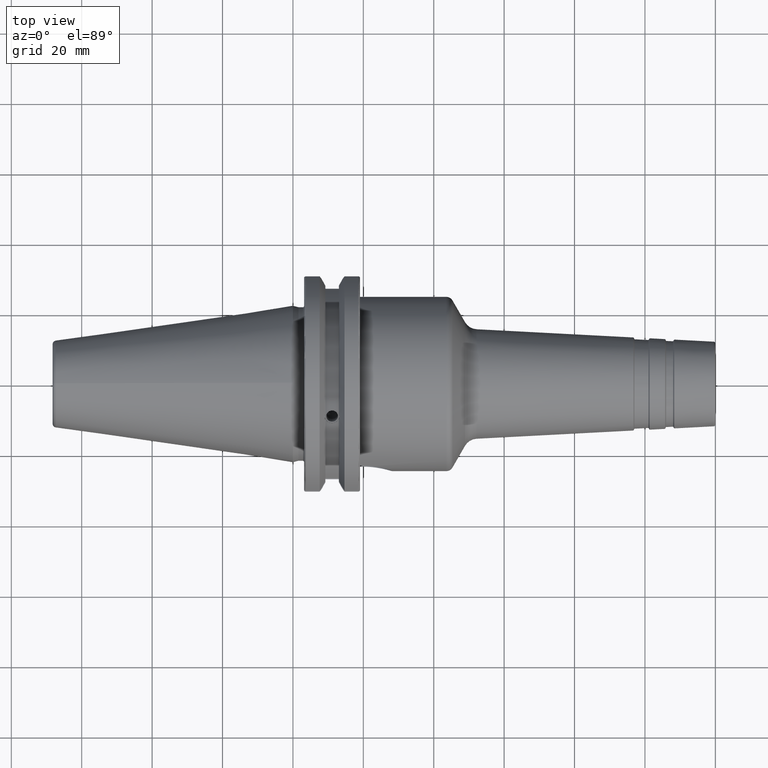
[diagram: clean part render]
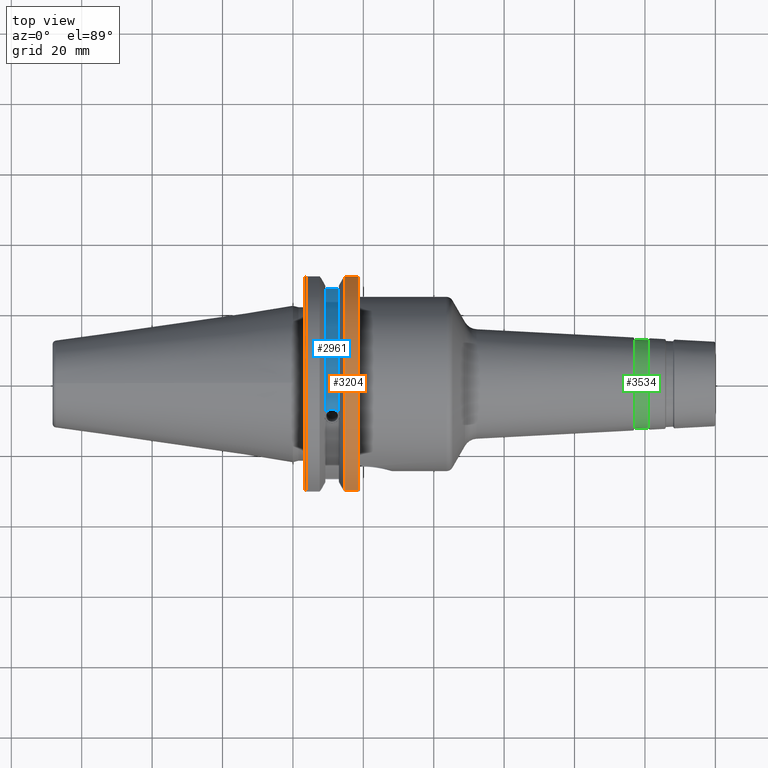
[diagram: same view with three faces highlighted in distinct colors, each labeled with its STEP entity id]
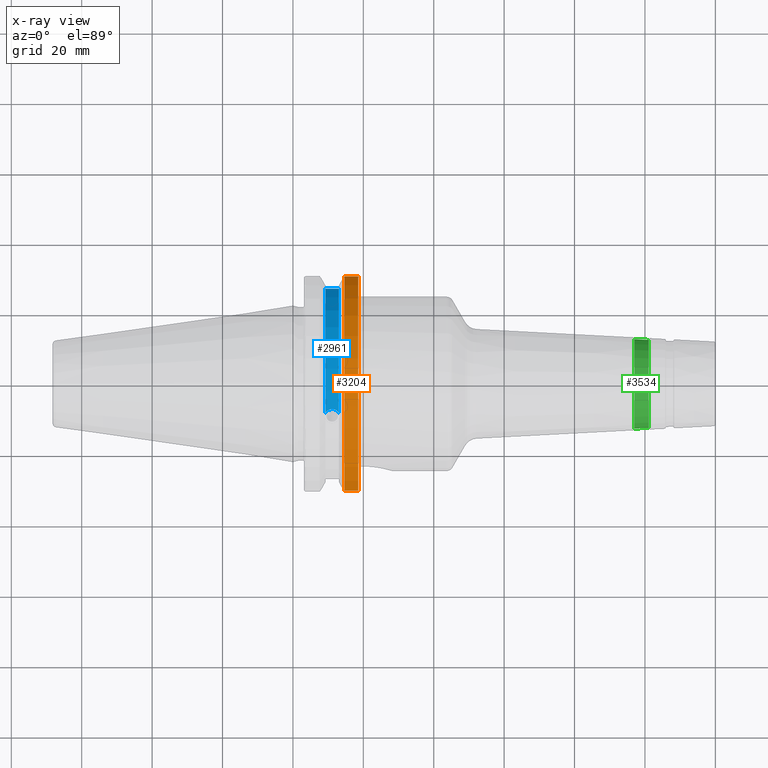
[diagram: x-ray of the same camera — body ghosted, the three highlighted faces saturated]
A machine part, top view with three faces highlighted in distinct colors.
The next image is the same camera in x-ray (body ghosted, the three faces saturated) — at least one of them is partly hidden behind the body in this view.
Their STEP definitions:

[orange] entity #3204 — the highlighted cylindrical surface (partial cylindrical patch) has radius 31.75 mm, axis along (1, 0, 0).
#740=DIRECTION('',(1.E0,0.E0,0.E0));
#741=VECTOR('',#740,3.892490865E0);
#742=CARTESIAN_POINT('',(1.465750913500E1,-3.042082819764E1,9.090418679549E0));
#743=LINE('',#742,#741);
#744=DIRECTION('',(-1.E0,0.E0,0.E0));
#745=VECTOR('',#744,3.892490865E0);
#746=CARTESIAN_POINT('',(1.855E1,3.042082819764E1,9.090418679549E0));
#747=LINE('',#746,#745);
#1427=CARTESIAN_POINT('',(1.465750913500E1,3.042082819764E1,9.090418679549E0));
#1433=CARTESIAN_POINT('',(1.465750913500E1,0.E0,0.E0));
#1434=DIRECTION('',(1.E0,0.E0,0.E0));
#1435=DIRECTION('',(0.E0,9.581363211856E-1,2.863123993559E-1));
#1436=AXIS2_PLACEMENT_3D('',#1433,#1434,#1435);
#1442=CARTESIAN_POINT('',(1.465750913500E1,-3.042082819764E1,9.090418679549E0));
#1642=CARTESIAN_POINT('',(1.855E1,0.E0,0.E0));
#1643=DIRECTION('',(-1.E0,0.E0,0.E0));
#1644=DIRECTION('',(0.E0,-9.581363211856E-1,2.863123993559E-1));
#1645=AXIS2_PLACEMENT_3D('',#1642,#1643,#1644);
#2051=VERTEX_POINT('',#1427);
#2062=VERTEX_POINT('',#1442);
#2119=CARTESIAN_POINT('',(1.855E1,3.042082819764E1,9.090418679549E0));
#2120=VERTEX_POINT('',#2119);
#2123=CARTESIAN_POINT('',(1.855E1,-3.042082819764E1,9.090418679549E0));
#2124=VERTEX_POINT('',#2123);
#3189=CARTESIAN_POINT('',(0.E0,0.E0,0.E0));
#3190=DIRECTION('',(1.E0,0.E0,0.E0));
#3191=DIRECTION('',(0.E0,0.E0,1.E0));
#3192=AXIS2_PLACEMENT_3D('',#3189,#3190,#3191);
#3193=CYLINDRICAL_SURFACE('',#3192,3.175E1);
#3195=ORIENTED_EDGE('',*,*,#3194,.F.);
#3197=ORIENTED_EDGE('',*,*,#3196,.F.);
#3199=ORIENTED_EDGE('',*,*,#3198,.F.);
#3201=ORIENTED_EDGE('',*,*,#3200,.F.);
#3202=EDGE_LOOP('',(#3195,#3197,#3199,#3201));
#3203=FACE_OUTER_BOUND('',#3202,.F.);
#3204=ADVANCED_FACE('',(#3203),#3193,.T.);
#1437=CIRCLE('',#1436,3.175E1);
#1646=CIRCLE('',#1645,3.175E1);
#3194=EDGE_CURVE('',#2124,#2120,#1646,.T.);
#3196=EDGE_CURVE('',#2062,#2124,#743,.T.);
#3198=EDGE_CURVE('',#2051,#2062,#1437,.T.);
#3200=EDGE_CURVE('',#2120,#2051,#747,.T.);

[blue] entity #2961 — the highlighted cylindrical surface (partial cylindrical patch) has radius 28.15 mm, axis along (1, 0, 0).
#501=CARTESIAN_POINT('',(9.2164E0,-8.819209443830E0,2.673282710051E1));
#502=CARTESIAN_POINT('',(9.277326922678E0,-8.689498949537E0,2.677561883413E1));
#503=CARTESIAN_POINT('',(9.425645848928E0,-8.445826615877E0,2.685394006863E1));
#504=CARTESIAN_POINT('',(9.731649204961E0,-8.122965336670E0,2.695313321566E1));
#505=CARTESIAN_POINT('',(1.011486024390E1,-7.861789599072E0,2.703022149910E1));
#506=CARTESIAN_POINT('',(1.058187730189E1,-7.677666024246E0,2.708286890270E1));
#507=CARTESIAN_POINT('',(1.094149101795E1,-7.627684587685E0,2.709688040773E1));
#508=CARTESIAN_POINT('',(1.11341E1,-7.627684587685E0,2.709688040773E1));
#510=CARTESIAN_POINT('',(9.2164E0,0.E0,0.E0));
#511=DIRECTION('',(-1.E0,0.E0,0.E0));
#512=DIRECTION('',(0.E0,-3.132934083066E-1,9.496563801248E-1));
#513=AXIS2_PLACEMENT_3D('',#510,#511,#512);
#515=DIRECTION('',(1.E0,0.E0,0.E0));
#516=VECTOR('',#515,3.83E0);
#517=CARTESIAN_POINT('',(9.2164E0,2.693225575402E1,8.19E0));
#518=LINE('',#517,#516);
#519=CARTESIAN_POINT('',(1.30464E1,0.E0,0.E0));
#520=DIRECTION('',(1.E0,0.E0,0.E0));
#521=DIRECTION('',(0.E0,9.567408793613E-1,2.909413854352E-1));
#522=AXIS2_PLACEMENT_3D('',#519,#520,#521);
#524=CARTESIAN_POINT('',(1.11341E1,-7.627684587685E0,2.709688040773E1));
#525=CARTESIAN_POINT('',(1.131266053571E1,-7.627684587685E0,2.709688040773E1));
#526=CARTESIAN_POINT('',(1.165534260523E1,-7.669766701942E0,2.708509079185E1));
#527=CARTESIAN_POINT('',(1.214633510704E1,-7.855182305992E0,2.703217674506E1));
#528=CARTESIAN_POINT('',(1.255355905525E1,-8.135364807552E0,2.694947821227E1));
#529=CARTESIAN_POINT('',(1.285859687358E1,-8.468591945938E0,2.684674534748E1));
#530=CARTESIAN_POINT('',(1.299198625224E1,-8.693870002458E0,2.677412025015E1));
#531=CARTESIAN_POINT('',(1.30464E1,-8.807808331916E0,2.673658565315E1));
#2018=CARTESIAN_POINT('',(9.2164E0,2.693225575402E1,8.19E0));
#2020=VERTEX_POINT('',#2018);
#2025=CARTESIAN_POINT('',(1.30464E1,2.693225575402E1,8.19E0));
#2026=VERTEX_POINT('',#2025);
#2263=CARTESIAN_POINT('',(1.11341E1,-7.627684587685E0,2.709688040773E1));
#2264=VERTEX_POINT('',#2263);
#2271=CARTESIAN_POINT('',(9.2164E0,-8.819209443830E0,2.673282710051E1));
#2272=VERTEX_POINT('',#2271);
#2275=VERTEX_POINT('',#531);
#2946=CARTESIAN_POINT('',(0.E0,0.E0,0.E0));
#2947=DIRECTION('',(1.E0,0.E0,0.E0));
#2948=DIRECTION('',(0.E0,0.E0,1.E0));
#2949=AXIS2_PLACEMENT_3D('',#2946,#2947,#2948);
#2950=CYLINDRICAL_SURFACE('',#2949,2.815E1);
#2951=ORIENTED_EDGE('',*,*,#2868,.F.);
#2953=ORIENTED_EDGE('',*,*,#2952,.T.);
#2955=ORIENTED_EDGE('',*,*,#2954,.T.);
#2957=ORIENTED_EDGE('',*,*,#2956,.T.);
#2958=ORIENTED_EDGE('',*,*,#2879,.F.);
#2959=EDGE_LOOP('',(#2951,#2953,#2955,#2957,#2958));
#2960=FACE_OUTER_BOUND('',#2959,.F.);
#2961=ADVANCED_FACE('',(#2960),#2950,.T.);
#509=B_SPLINE_CURVE_WITH_KNOTS('',3,(#501,#502,#503,#504,#505,#506,#507,#508),
.UNSPECIFIED.,.F.,.F.,(4,1,1,1,1,4),(0.E0,2.E-1,4.E-1,6.E-1,8.E-1,1.E0),
.UNSPECIFIED.);
#514=CIRCLE('',#513,2.815E1);
#523=CIRCLE('',#522,2.815E1);
#532=B_SPLINE_CURVE_WITH_KNOTS('',3,(#524,#525,#526,#527,#528,#529,#530,#531),
.UNSPECIFIED.,.F.,.F.,(4,1,1,1,1,4),(0.E0,2.E-1,4.E-1,6.E-1,8.E-1,1.E0),
.UNSPECIFIED.);
#2868=EDGE_CURVE('',#2272,#2264,#509,.T.);
#2879=EDGE_CURVE('',#2264,#2275,#532,.T.);
#2952=EDGE_CURVE('',#2272,#2020,#514,.T.);
#2954=EDGE_CURVE('',#2020,#2026,#518,.T.);
#2956=EDGE_CURVE('',#2026,#2275,#523,.T.);

[green] entity #3534 — the highlighted conical surface has half-angle 3.001 deg.
#956=CARTESIAN_POINT('',(9.701735928874E1,0.E0,0.E0));
#957=DIRECTION('',(1.E0,0.E0,0.E0));
#958=DIRECTION('',(0.E0,1.E0,0.E0));
#959=AXIS2_PLACEMENT_3D('',#956,#957,#958);
#974=DIRECTION('',(-9.986289819796E-1,5.234650275126E-2,0.E0));
#975=VECTOR('',#974,4.000000000002E0);
#976=CARTESIAN_POINT('',(1.010118752167E2,1.249294789698E1,0.E0));
#977=LINE('',#976,#975);
#978=DIRECTION('',(-9.986289819796E-1,-5.234650275126E-2,0.E0));
#979=VECTOR('',#978,4.000000000002E0);
#980=CARTESIAN_POINT('',(1.010118752167E2,-1.249294789698E1,0.E0));
#981=LINE('',#980,#979);
#987=CARTESIAN_POINT('',(1.010118752167E2,0.E0,0.E0));
#988=DIRECTION('',(1.E0,0.E0,0.E0));
#989=DIRECTION('',(0.E0,1.E0,0.E0));
#990=AXIS2_PLACEMENT_3D('',#987,#988,#989);
#2319=CARTESIAN_POINT('',(1.010118752167E2,1.249294789698E1,0.E0));
#2320=VERTEX_POINT('',#2319);
#2321=CARTESIAN_POINT('',(9.701735928874E1,1.270233390798E1,0.E0));
#2322=VERTEX_POINT('',#2321);
#2335=CARTESIAN_POINT('',(1.010118752167E2,-1.249294789698E1,0.E0));
#2336=VERTEX_POINT('',#2335);
#2337=CARTESIAN_POINT('',(9.701735928874E1,-1.270233390798E1,0.E0));
#2338=VERTEX_POINT('',#2337);
#3522=CARTESIAN_POINT('',(9.901461725270E1,0.E0,0.E0));
#3523=DIRECTION('',(-1.E0,0.E0,0.E0));
#3524=DIRECTION('',(0.E0,1.E0,0.E0));
#3525=AXIS2_PLACEMENT_3D('',#3522,#3523,#3524);
#3526=CONICAL_SURFACE('',#3525,1.259764090248E1,3.000605099851E0);
#3527=ORIENTED_EDGE('',*,*,#3512,.F.);
#3529=ORIENTED_EDGE('',*,*,#3528,.T.);
#3530=ORIENTED_EDGE('',*,*,#3515,.T.);
#3531=ORIENTED_EDGE('',*,*,#3486,.F.);
#3532=EDGE_LOOP('',(#3527,#3529,#3530,#3531));
#3533=FACE_OUTER_BOUND('',#3532,.F.);
#3534=ADVANCED_FACE('',(#3533),#3526,.T.);
#960=CIRCLE('',#959,1.270233390798E1);
#991=CIRCLE('',#990,1.249294789698E1);
#3486=EDGE_CURVE('',#2322,#2338,#960,.T.);
#3512=EDGE_CURVE('',#2320,#2322,#977,.T.);
#3515=EDGE_CURVE('',#2336,#2338,#981,.T.);
#3528=EDGE_CURVE('',#2320,#2336,#991,.T.);